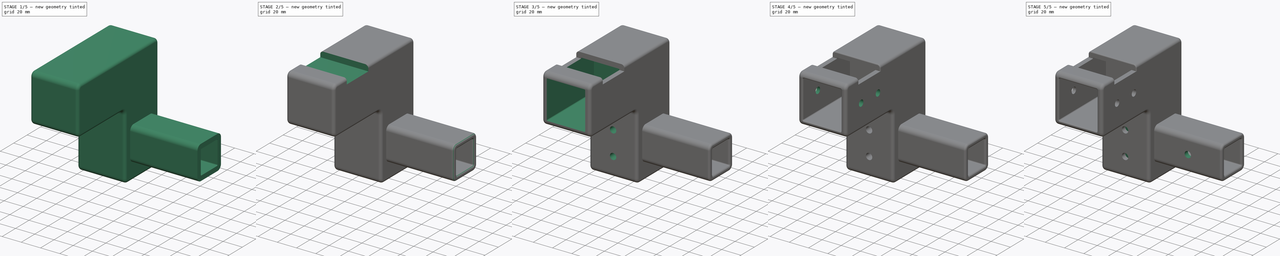
[diagram: build sequence overview — one tinted view per stage of 5, left to right]
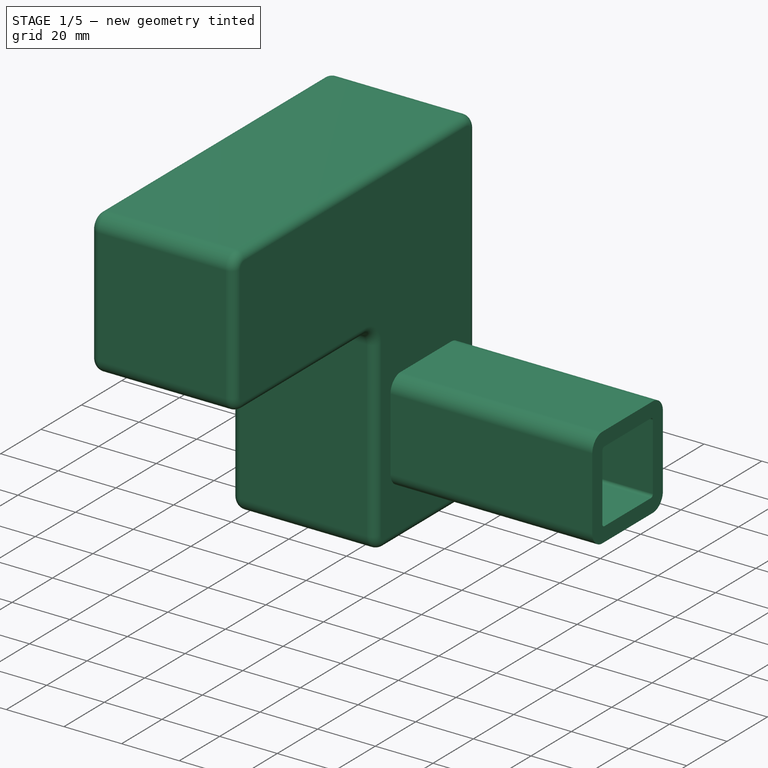
[diagram: stage 1 of 5 — iso view after this stage's code; geometry added in this stage tinted green]
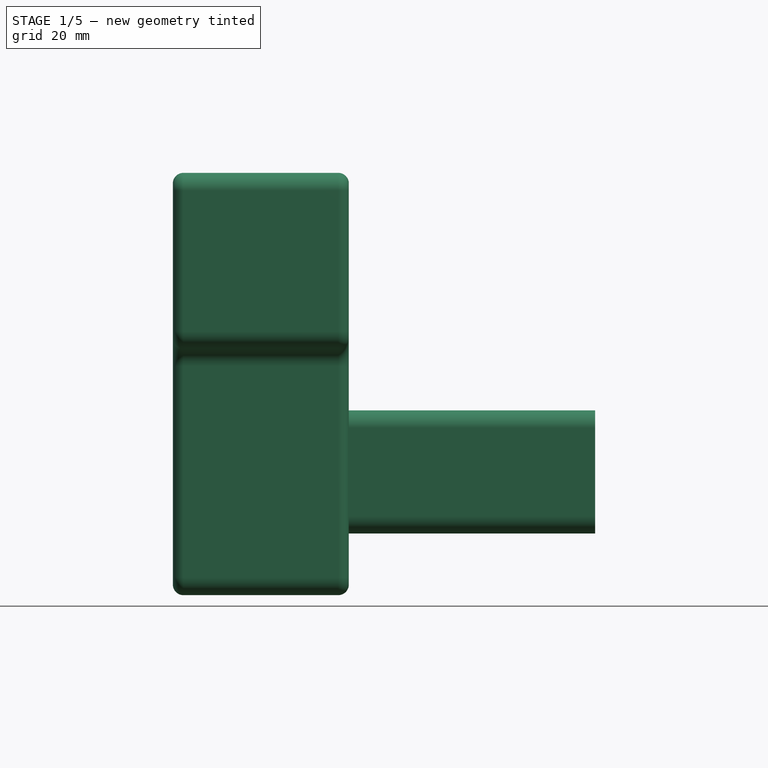
[diagram: stage 1 of 5 — front view after this stage's code; geometry added in this stage tinted green]
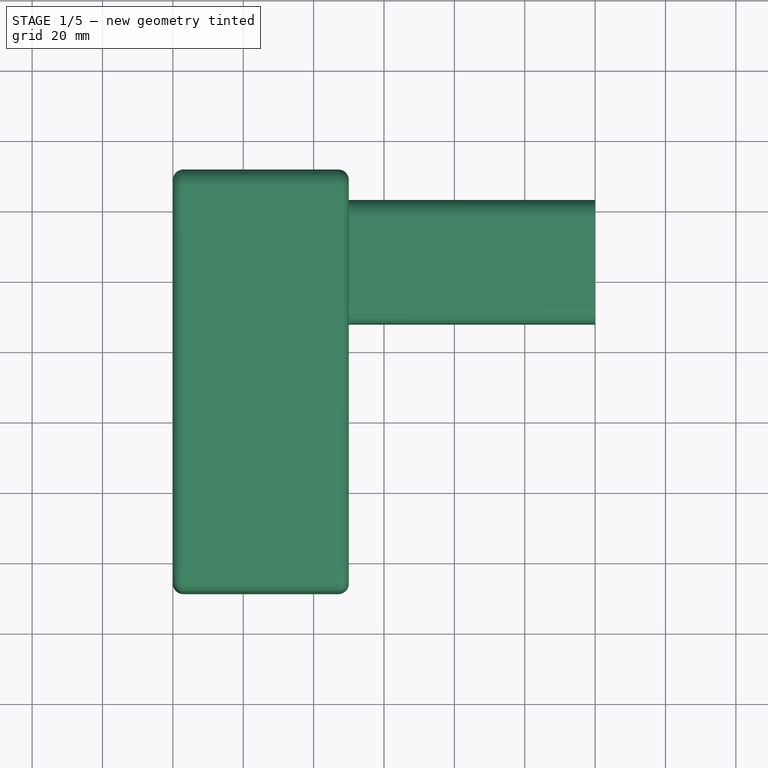
[diagram: stage 1 of 5 — top view after this stage's code; geometry added in this stage tinted green]
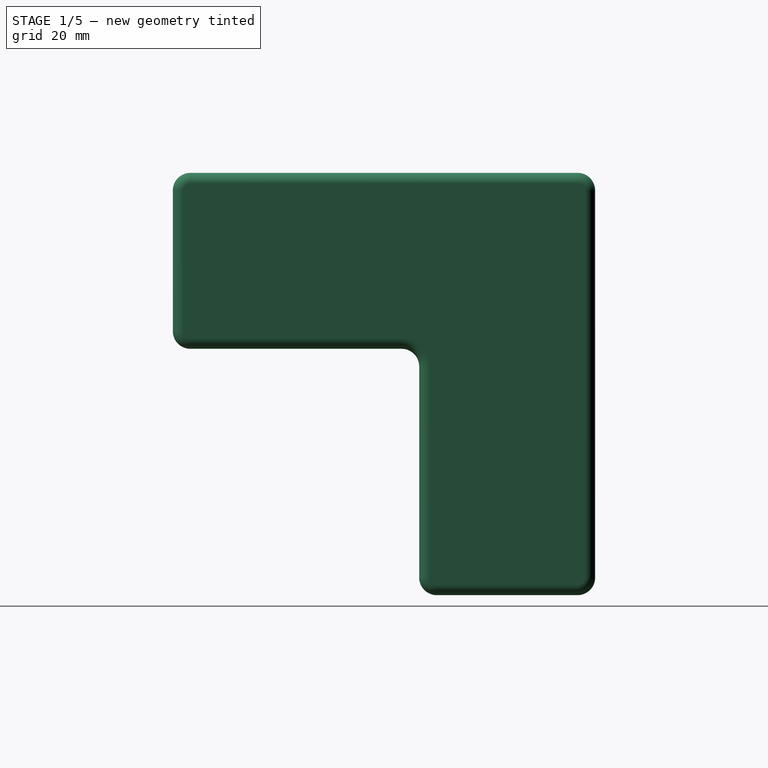
[diagram: stage 1 of 5 — right view after this stage's code; geometry added in this stage tinted green]
FCSTD DOCUMENT  (FreeCAD 0.21R33771 (Git))
Label: solow-cube-back-top-corner-left
License: All rights reserved
LicenseURL: http://en.wikipedia.org/wiki/All_rights_reserved
objects: Sketcher::SketchObject×9, PartDesign::Fillet×9, PartDesign::Hole×4, PartDesign::Pocket×3, PartDesign::Pad×2, PartDesign::Body×1
note: 46 computed .brp shape members not serialized (recipe doc carries the construction recipe); baked Part::Feature solids carry a one-line shape summary decoded from their .brp

FEATURE [Sketcher::SketchObject] Sketch
  FullyConstrained = true
  MapMode = 5
  Placement = pos=(0,0,0) rot=(0.57735,0.57735,0.57735;2.0944rad)
  Support = -> [YZ_Plane]
  sketch-geometry (18):
    g0: LineSegment StartX=-5 StartY=-1.234e-13 StartZ=0 EndX=-65 EndY=0 EndZ=0
    g1: LineSegment StartX=-70 StartY=5 StartZ=0 EndX=-70 EndY=45 EndZ=0
    g2: LineSegment StartX=-65 StartY=50 StartZ=0 EndX=45 EndY=50 EndZ=0
    g3: LineSegment StartX=50 StartY=45 StartZ=0 EndX=50 EndY=-65 EndZ=0
    g4: LineSegment StartX=45 StartY=-70 StartZ=0 EndX=5 EndY=-70 EndZ=0
    g5: LineSegment StartX=0 StartY=-65 StartZ=0 EndX=-1.234e-13 EndY=-5 EndZ=0
    g6: ArcOfCircle CenterX=-65 CenterY=45 CenterZ=0 NormalX=0 NormalY=0 NormalZ=1 AngleXU=0 Radius=5 StartAngle=1.5708 EndAngle=3.14159
    g7: GeomPoint X=-70 Y=50 Z=0
    g8: ArcOfCircle CenterX=-65 CenterY=5 CenterZ=0 NormalX=0 NormalY=0 NormalZ=1 AngleXU=0 Radius=5 StartAngle=3.14159 EndAngle=4.71239
    g9: GeomPoint X=-70 Y=0 Z=0
    g10: ArcOfCircle CenterX=5 CenterY=-65 CenterZ=0 NormalX=0 NormalY=0 NormalZ=1 AngleXU=0 Radius=5 StartAngle=3.14159 EndAngle=4.71239
    g11: GeomPoint X=0 Y=-70 Z=0
    g12: ArcOfCircle CenterX=45 CenterY=-65 CenterZ=0 NormalX=0 NormalY=0 NormalZ=1 AngleXU=0 Radius=5 StartAngle=4.71239 EndAngle=6.28319
    g13: GeomPoint X=50 Y=-70 Z=0
    g14: ArcOfCircle CenterX=45 CenterY=45 CenterZ=0 NormalX=0 NormalY=0 NormalZ=1 AngleXU=0 Radius=5 StartAngle=-9e-16 EndAngle=1.5708
    g15: GeomPoint X=50 Y=50 Z=0
    g16: ArcOfCircle CenterX=-5 CenterY=-5 CenterZ=0 NormalX=0 NormalY=0 NormalZ=1 AngleXU=0 Radius=5 StartAngle=-3.819e-13 EndAngle=1.5708
    g17: GeomPoint X=0 Y=0 Z=0
  constraints (41):
    c: Coincident(g17,g-1)
    c: PointOnObject(g9,g-1)
    c: Vertical(g1)
    c: Horizontal(g2)
    c: Vertical(g3)
    c: DistanceY(g13,g15) = 120
    c: DistanceY(g9,g7) = 50
    c: DistanceX(g7,g15) = 120
    c: PointOnObject(g11,g-2)
    c: Horizontal(g4)
    c: DistanceX(g11,g13) = 50
    c: PointOnObject(g7,g1)
    c: PointOnObject(g7,g2)
    c: Tangent(g1,g6) = 1.5708
    c: Tangent(g2,g6) = 1.5708
    c: PointOnObject(g9,g1)
    c: PointOnObject(g9,g0)
    c: Tangent(g1,g8) = 1.5708
    c: Tangent(g0,g8) = 1.5708
    c: PointOnObject(g11,g5)
    c: PointOnObject(g11,g4)
    c: Tangent(g5,g10) = 1.5708
    c: Tangent(g4,g10) = 1.5708
    c: PointOnObject(g13,g3)
    c: PointOnObject(g13,g4)
    c: Tangent(g3,g12) = 1.5708
    c: Tangent(g4,g12) = 1.5708
    c: PointOnObject(g15,g3)
    c: PointOnObject(g15,g2)
    c: Tangent(g3,g14) = 1.5708
    c: Tangent(g2,g14) = 1.5708
    c: Radius(g6) = 5
    c: Radius(g8) = 5
    c: Radius(g14) = 5
    c: Radius(g10) = 5
    c: Radius(g12) = 5
    c: PointOnObject(g17,g0)
    c: PointOnObject(g17,g5)
    c: Tangent(g0,g16) = -1.5708
    c: Tangent(g5,g16) = -1.5708
    c: Radius(g16) = 5
FEATURE [PartDesign::Pad] Pad
  Direction = (1,-2e-16,3e-16)
  Length = 50
  Length2 = 10
  Placement = pos=(0,0,0) rot=(0.57735,0.57735,0.57735;2.0944rad)
  Profile = -> Sketch
  ReferenceAxis = -> Sketch [N_Axis]
  Type = 0
FEATURE [PartDesign::Fillet] Fillet
  Base = -> Pad [Edge21]
  BaseFeature = -> Pad
  Placement = pos=(0,0,0) rot=(0.57735,0.57735,0.57735;2.0944rad)
  Radius = 3
  SupportTransform = false
  UseAllEdges = false
FEATURE [PartDesign::Fillet] Fillet001
  Base = -> Fillet [Edge16]
  BaseFeature = -> Fillet
  Placement = pos=(0,0,0) rot=(0.57735,0.57735,0.57735;2.0944rad)
  Radius = 3
  SupportTransform = false
  UseAllEdges = false
FEATURE [Sketcher::SketchObject] Sketch001
  FullyConstrained = true
  MapMode = 5
  Placement = pos=(50,-2.2e-14,1.7e-14) rot=(0.57735,0.57735,0.57735;2.0944rad)
  sketch-geometry (24):
    g0: LineSegment StartX=13.5 StartY=-22.5 StartZ=0 EndX=36.5 EndY=-22.5 EndZ=0
    g1: LineSegment StartX=37.5 StartY=-23.5 StartZ=0 EndX=37.5 EndY=-46.5 EndZ=0
    g2: LineSegment StartX=36.5 StartY=-47.5 StartZ=0 EndX=13.5 EndY=-47.5 EndZ=0
    g3: LineSegment StartX=12.5 StartY=-46.5 StartZ=0 EndX=12.5 EndY=-23.5 EndZ=0
    g4: ArcOfCircle CenterX=13.5 CenterY=-23.5 CenterZ=0 NormalX=0 NormalY=0 NormalZ=1 AngleXU=0 Radius=1 StartAngle=1.5708 EndAngle=3.14159
    g5: GeomPoint X=12.5 Y=-22.5 Z=0
    g6: ArcOfCircle CenterX=36.5 CenterY=-23.5 CenterZ=0 NormalX=0 NormalY=0 NormalZ=1 AngleXU=0 Radius=1 StartAngle=1.1e-15 EndAngle=1.5708
    g7: GeomPoint X=37.5 Y=-22.5 Z=0
    g8: ArcOfCircle CenterX=13.5 CenterY=-46.5 CenterZ=0 NormalX=0 NormalY=0 NormalZ=1 AngleXU=0 Radius=1 StartAngle=3.14159 EndAngle=4.71239
    g9: GeomPoint X=12.5 Y=-47.5 Z=0
    g10: ArcOfCircle CenterX=36.5 CenterY=-46.5 CenterZ=0 NormalX=0 NormalY=0 NormalZ=1 AngleXU=0 Radius=1 StartAngle=4.71239 EndAngle=6.28319
    g11: GeomPoint X=37.5 Y=-47.5 Z=0
    g12: LineSegment StartX=12.5 StartY=-17.5 StartZ=0 EndX=37.5 EndY=-17.5 EndZ=0
    g13: LineSegment StartX=42.5 StartY=-22.5 StartZ=0 EndX=42.5 EndY=-47.5 EndZ=0
    g14: LineSegment StartX=37.5 StartY=-52.5 StartZ=0 EndX=12.5 EndY=-52.5 EndZ=0
    g15: LineSegment StartX=7.5 StartY=-47.5 StartZ=0 EndX=7.5 EndY=-22.5 EndZ=0
    g16: ArcOfCircle CenterX=12.5 CenterY=-22.5 CenterZ=0 NormalX=0 NormalY=0 NormalZ=1 AngleXU=0 Radius=5 StartAngle=1.5708 EndAngle=3.14159
    g17: GeomPoint X=7.5 Y=-17.5 Z=0
    g18: ArcOfCircle CenterX=12.5 CenterY=-47.5 CenterZ=0 NormalX=0 NormalY=0 NormalZ=1 AngleXU=0 Radius=5 StartAngle=3.14159 EndAngle=4.71239
    g19: GeomPoint X=7.5 Y=-52.5 Z=0
    g20: ArcOfCircle CenterX=37.5 CenterY=-47.5 CenterZ=0 NormalX=0 NormalY=0 NormalZ=1 AngleXU=0 Radius=5 StartAngle=4.71239 EndAngle=6.28319
    g21: GeomPoint X=42.5 Y=-52.5 Z=0
    g22: ArcOfCircle CenterX=37.5 CenterY=-22.5 CenterZ=0 NormalX=0 NormalY=0 NormalZ=1 AngleXU=0 Radius=5 StartAngle=0 EndAngle=1.5708
    g23: GeomPoint X=42.5 Y=-17.5 Z=0
  constraints (56):
    c: Horizontal(g0)
    c: Horizontal(g2)
    c: Vertical(g1)
    c: Vertical(g3)
    c: DistanceX(g5) = 12.5
    c: DistanceX(g9,g11) = 25
    c: DistanceY(g5) = -22.5
    c: DistanceY(g9,g5) = 25
    c: PointOnObject(g5,g3)
    c: PointOnObject(g5,g0)
    c: Tangent(g3,g4) = 1.5708
    c: Tangent(g0,g4) = 1.5708
    c: PointOnObject(g7,g0)
    c: PointOnObject(g7,g1)
    c: Tangent(g0,g6) = 1.5708
    c: Tangent(g1,g6) = 1.5708
    c: PointOnObject(g9,g2)
    c: PointOnObject(g9,g3)
    c: Tangent(g2,g8) = 1.5708
    c: Tangent(g3,g8) = 1.5708
    c: PointOnObject(g11,g1)
    c: PointOnObject(g11,g2)
    c: Tangent(g1,g10) = 1.5708
    c: Tangent(g2,g10) = 1.5708
    c: Radius(g4) = 1
    c: Radius(g8) = 1
    c: Radius(g10) = 1
    c: Radius(g6) = 1
    c: Horizontal(g12)
    c: Horizontal(g14)
    c: Vertical(g13)
    c: Vertical(g15)
    c: DistanceX(g17) = 7.5
    c: DistanceY(g17) = -17.5
    c: DistanceY(g21) = -52.5
    c: DistanceX(g21) = 42.5
    c: PointOnObject(g17,g15)
    c: PointOnObject(g17,g12)
    c: Tangent(g15,g16) = 1.5708
    c: Tangent(g12,g16) = 1.5708
    c: PointOnObject(g19,g14)
    c: PointOnObject(g19,g15)
    c: Tangent(g14,g18) = 1.5708
    c: Tangent(g15,g18) = 1.5708
    c: PointOnObject(g21,g14)
    c: PointOnObject(g21,g13)
    c: Tangent(g14,g20) = 1.5708
    c: Tangent(g13,g20) = 1.5708
    c: PointOnObject(g23,g13)
    c: PointOnObject(g23,g12)
    c: Tangent(g13,g22) = 1.5708
    c: Tangent(g12,g22) = 1.5708
    c: Radius(g16) = 5
    c: Radius(g22) = 5
    c: Radius(g18) = 5
    c: Radius(g20) = 5
FEATURE [PartDesign::Pad] Pad001
  BaseFeature = -> Fillet001
  Direction = (1,0,0)
  Length = 70
  Length2 = 10
  Placement = pos=(0,0,0) rot=(0.57735,0.57735,0.57735;2.0944rad)
  Profile = -> Sketch001
  ReferenceAxis = -> Sketch001 [N_Axis]
  Type = 0
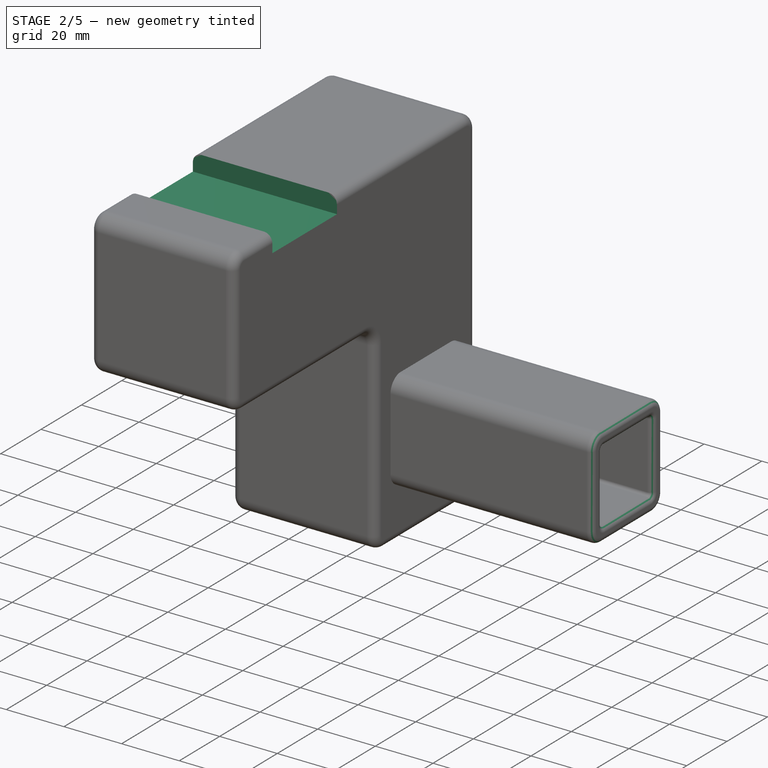
[diagram: stage 2 of 5 — iso view after this stage's code; geometry added in this stage tinted green]
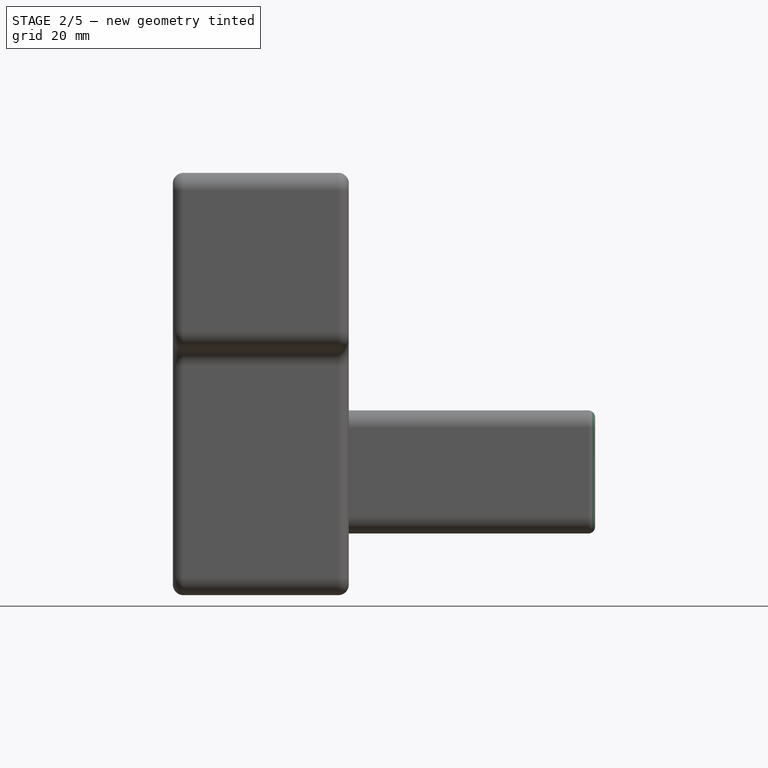
[diagram: stage 2 of 5 — front view after this stage's code; geometry added in this stage tinted green]
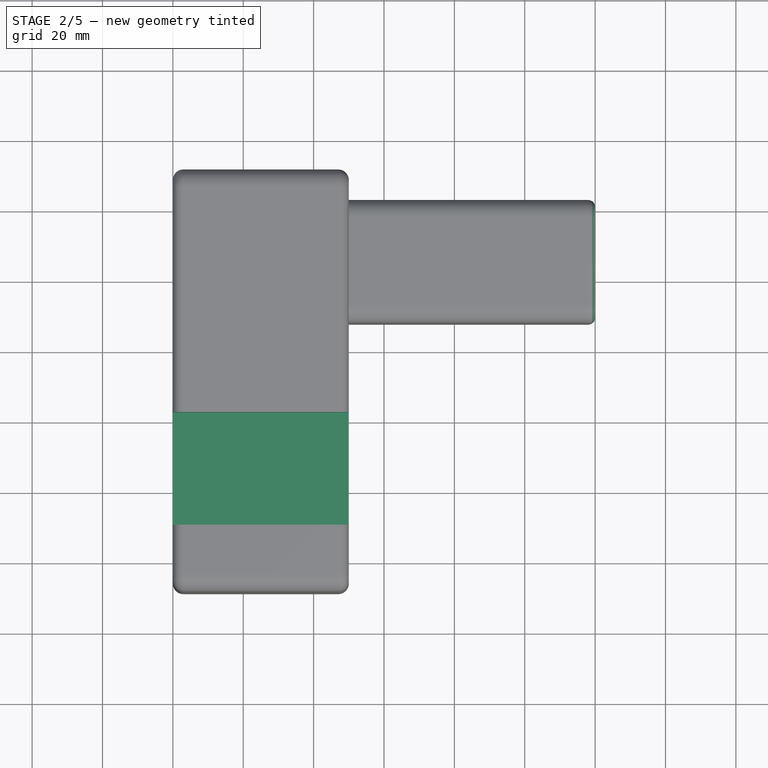
[diagram: stage 2 of 5 — top view after this stage's code; geometry added in this stage tinted green]
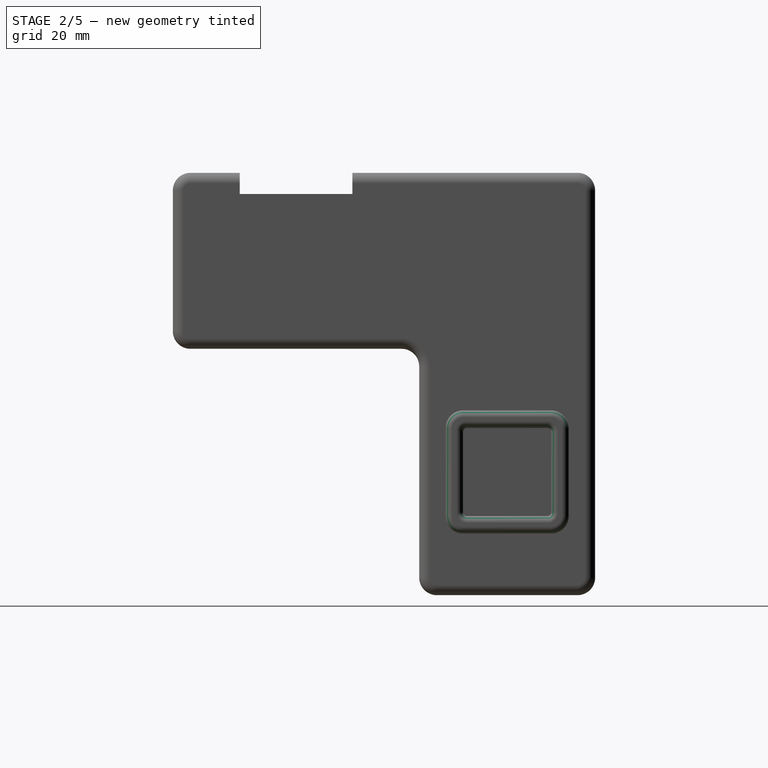
[diagram: stage 2 of 5 — right view after this stage's code; geometry added in this stage tinted green]
FEATURE [PartDesign::Fillet] Fillet002
  Base = -> Pad001 [Edge87]
  BaseFeature = -> Pad001
  Placement = pos=(0,0,0) rot=(0.57735,0.57735,0.57735;2.0944rad)
  Radius = 2
  SupportTransform = false
  UseAllEdges = false
FEATURE [PartDesign::Fillet] Fillet003
  Base = -> Fillet002 [Edge46]
  BaseFeature = -> Fillet002
  Placement = pos=(0,0,0) rot=(0.57735,0.57735,0.57735;2.0944rad)
  Radius = 2
  SupportTransform = false
  UseAllEdges = false
FEATURE [Sketcher::SketchObject] Sketch002
  FullyConstrained = true
  MapMode = 5
  Placement = pos=(0,0,0) rot=(0.57735,0.57735,-0.57735;4.18879rad)
  sketch-geometry (4):
    g0: LineSegment StartX=-19 StartY=-50 StartZ=0 EndX=-51 EndY=-50 EndZ=0
    g1: LineSegment StartX=-51 StartY=-50 StartZ=0 EndX=-51 EndY=-44 EndZ=0
    g2: LineSegment StartX=-51 StartY=-44 StartZ=0 EndX=-19 EndY=-44 EndZ=0
    g3: LineSegment StartX=-19 StartY=-44 StartZ=0 EndX=-19 EndY=-50 EndZ=0
  constraints (12):
    c: Coincident(g0,g1)
    c: Coincident(g1,g2)
    c: Coincident(g2,g3)
    c: Coincident(g3,g0)
    c: Horizontal(g0)
    c: Horizontal(g2)
    c: Vertical(g1)
    c: Vertical(g3)
    c: DistanceY(g2) = -44
    c: DistanceX(g2) = -19
    c: DistanceY(g0) = -50
    c: DistanceX(g0) = -51
FEATURE [PartDesign::Pocket] Pocket
  BaseFeature = -> Fillet003
  Direction = (1,0,0)
  Length = 6
  Length2 = 5
  Placement = pos=(0,0,0) rot=(0.57735,0.57735,0.57735;2.0944rad)
  Profile = -> Sketch002
  ReferenceAxis = -> Sketch002 [N_Axis]
  Type = 1
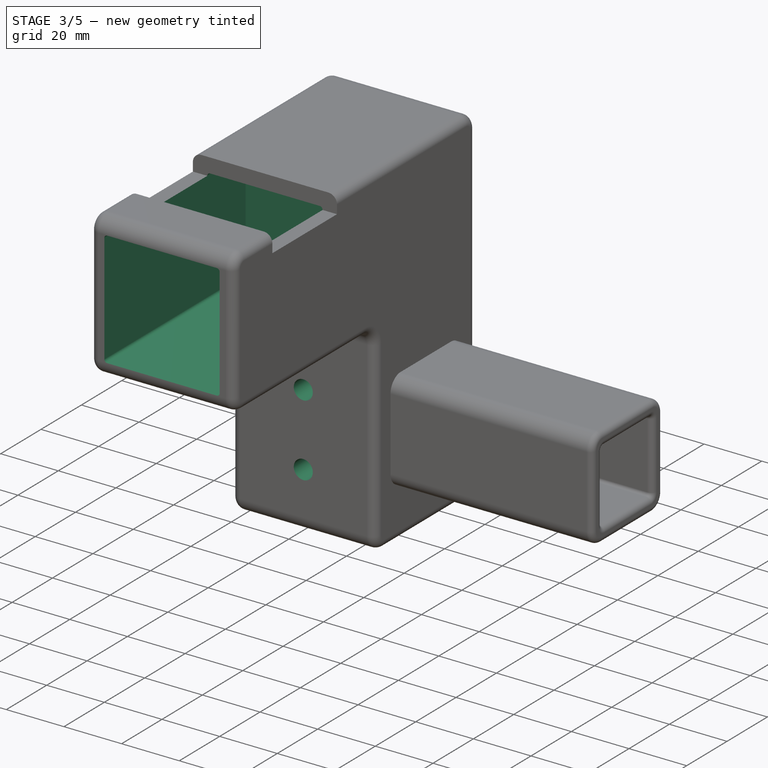
[diagram: stage 3 of 5 — iso view after this stage's code; geometry added in this stage tinted green]
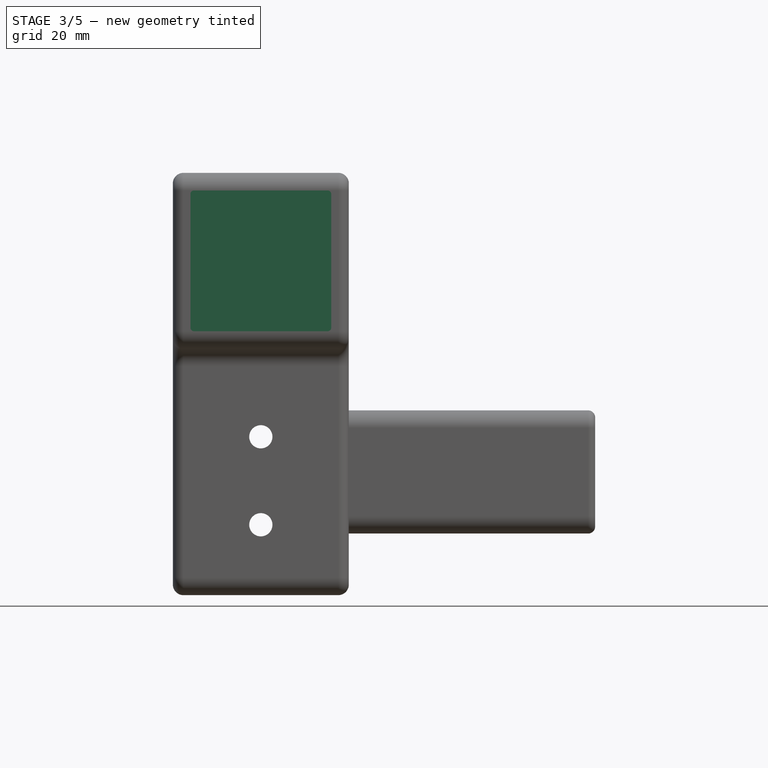
[diagram: stage 3 of 5 — front view after this stage's code; geometry added in this stage tinted green]
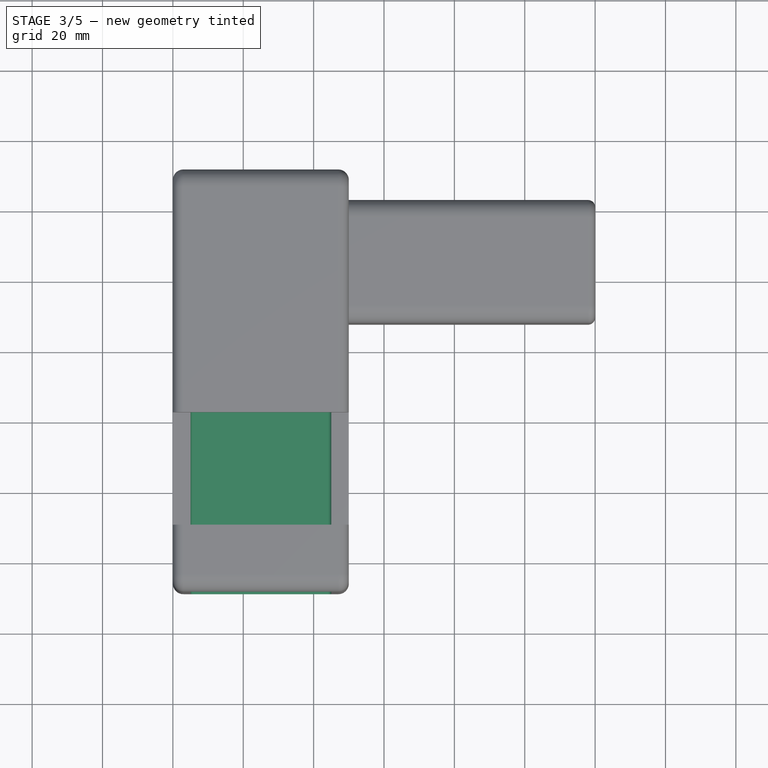
[diagram: stage 3 of 5 — top view after this stage's code; geometry added in this stage tinted green]
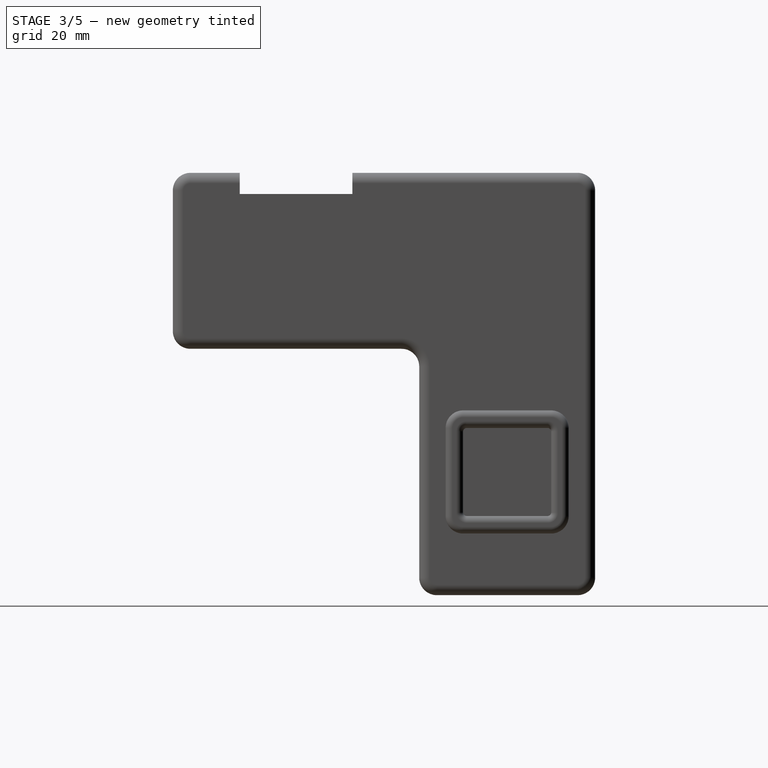
[diagram: stage 3 of 5 — right view after this stage's code; geometry added in this stage tinted green]
FEATURE [Sketcher::SketchObject] Sketch003
  FullyConstrained = true
  MapMode = 5
  Placement = pos=(-4.6e-14,-70,1.5e-14) rot=(0.57735,0.57735,-0.57735;2.0944rad)
  sketch-geometry (12):
    g0: LineSegment StartX=-6 StartY=5 StartZ=0 EndX=-44 EndY=5 EndZ=0
    g1: LineSegment StartX=-45 StartY=6 StartZ=0 EndX=-45 EndY=44 EndZ=0
    g2: LineSegment StartX=-44 StartY=45 StartZ=0 EndX=-6 EndY=45 EndZ=0
    g3: LineSegment StartX=-5 StartY=44 StartZ=0 EndX=-5 EndY=6 EndZ=0
    g4: ArcOfCircle CenterX=-44 CenterY=6 CenterZ=0 NormalX=0 NormalY=0 NormalZ=1 AngleXU=0 Radius=1 StartAngle=3.14159 EndAngle=4.71239
    g5: GeomPoint X=-45 Y=5 Z=0
    g6: ArcOfCircle CenterX=-6 CenterY=6 CenterZ=0 NormalX=0 NormalY=0 NormalZ=1 AngleXU=0 Radius=1 StartAngle=4.71239 EndAngle=6.28319
    g7: GeomPoint X=-5 Y=5 Z=0
    g8: ArcOfCircle CenterX=-6 CenterY=44 CenterZ=0 NormalX=0 NormalY=0 NormalZ=1 AngleXU=0 Radius=1 StartAngle=7.7846e-12 EndAngle=1.5708
    g9: GeomPoint X=-5 Y=45 Z=0
    g10: ArcOfCircle CenterX=-44 CenterY=44 CenterZ=0 NormalX=0 NormalY=0 NormalZ=1 AngleXU=0 Radius=1 StartAngle=1.5708 EndAngle=3.14159
    g11: GeomPoint X=-45 Y=45 Z=0
  constraints (28):
    c: Horizontal(g0)
    c: Horizontal(g2)
    c: Vertical(g1)
    c: Vertical(g3)
    c: DistanceX(g7) = -5
    c: DistanceY(g7) = 5
    c: DistanceX(g11) = -45
    c: DistanceY(g11) = 45
    c: PointOnObject(g5,g0)
    c: PointOnObject(g5,g1)
    c: Tangent(g0,g4) = 1.5708
    c: Tangent(g1,g4) = 1.5708
    c: PointOnObject(g7,g0)
    c: PointOnObject(g7,g3)
    c: Tangent(g0,g6) = 1.5708
    c: Tangent(g3,g6) = 1.5708
    c: PointOnObject(g9,g2)
    c: PointOnObject(g9,g3)
    c: Tangent(g2,g8) = 1.5708
    c: Tangent(g3,g8) = 1.5708
    c: PointOnObject(g11,g2)
    c: PointOnObject(g11,g1)
    c: Tangent(g2,g10) = 1.5708
    c: Tangent(g1,g10) = 1.5708
    c: Radius(g4) = 1
    c: Radius(g10) = 1
    c: Radius(g6) = 1
    c: Radius(g8) = 1
FEATURE [PartDesign::Pocket] Pocket001
  BaseFeature = -> Pocket
  Direction = (1e-15,1,-1e-16)
  Length = 70
  Length2 = 5
  Placement = pos=(0,0,0) rot=(0.57735,0.57735,0.57735;2.0944rad)
  Profile = -> Sketch003
  ReferenceAxis = -> Sketch003 [N_Axis]
  Type = 0
FEATURE [PartDesign::Fillet] Fillet004
  Base = -> Pocket001 [Edge122]
  BaseFeature = -> Pocket001
  Placement = pos=(0,0,0) rot=(0.57735,0.57735,0.57735;2.0944rad)
  Radius = 1
  SupportTransform = false
  UseAllEdges = false
FEATURE [Sketcher::SketchObject] Sketch004
  FullyConstrained = true
  MapMode = 5
  Placement = pos=(3.9e-14,50,-1.1e-14) rot=(0.57735,0.57735,0.57735;4.18879rad)
  sketch-geometry (2):
    g0: Circle CenterX=-25 CenterY=25 CenterZ=0 NormalX=0 NormalY=0 NormalZ=1 AngleXU=0 Radius=3
    g1: Circle CenterX=-50 CenterY=25 CenterZ=0 NormalX=0 NormalY=0 NormalZ=1 AngleXU=0 Radius=3
  constraints (6):
    c: DistanceX(g0) = -25
    c: DistanceX(g1) = -50
    c: DistanceY(g0) = 25
    c: DistanceY(g1) = 25
    c: Diameter(g1) = 6
    c: Diameter(g0) = 6
FEATURE [PartDesign::Fillet] Fillet005
  Base = -> Fillet004 [Edge20]
  BaseFeature = -> Fillet004
  Placement = pos=(0,0,0) rot=(0.57735,0.57735,0.57735;2.0944rad)
  Radius = 2
  SupportTransform = false
  UseAllEdges = false
FEATURE [PartDesign::Hole] Hole
  BaseFeature = -> Fillet005
  CustomThreadClearance = 0
  Depth = 419.849
  DepthType = 1
  Diameter = 6.6
  DrillForDepth = false
  DrillPoint = 1
  DrillPointAngle = 118
  HoleCutCountersinkAngle = 90
  HoleCutCustomValues = false
  HoleCutDepth = 1.8
  HoleCutDiameter = 11
  HoleCutType = 1
  ModelThread = false
  Placement = pos=(0,0,0) rot=(0.57735,0.57735,0.57735;2.0944rad)
  Profile = -> Sketch004
  Tapered = false
  TaperedAngle = 90
  ThreadClass = 0
  ThreadDepth = 419.849
  ThreadDepthType = 0
  ThreadDirection = 0
  ThreadFit = 0
  ThreadSize = 14
  ThreadType = 1
  Threaded = false
  UseCustomThreadClearance = false
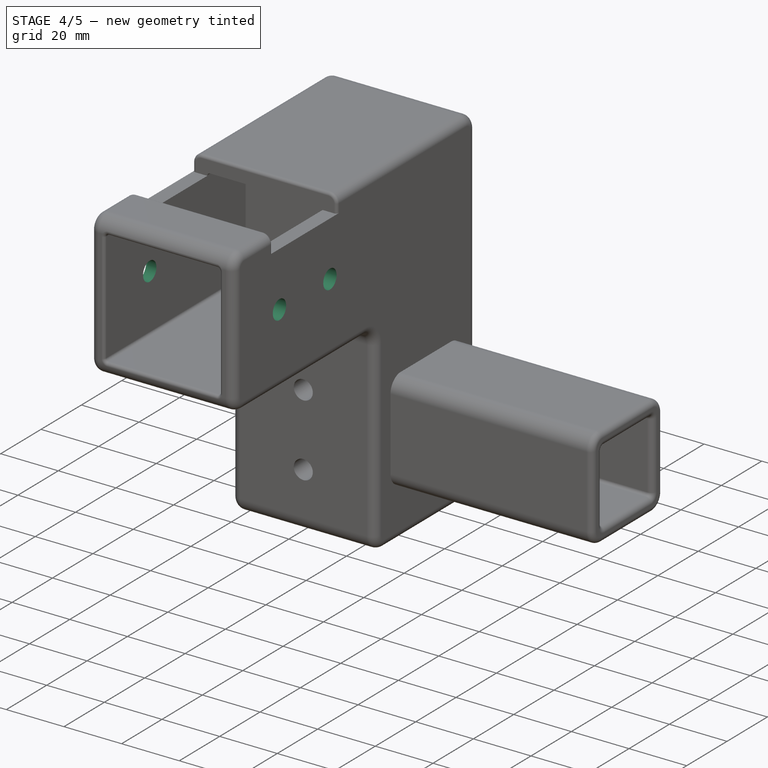
[diagram: stage 4 of 5 — iso view after this stage's code; geometry added in this stage tinted green]
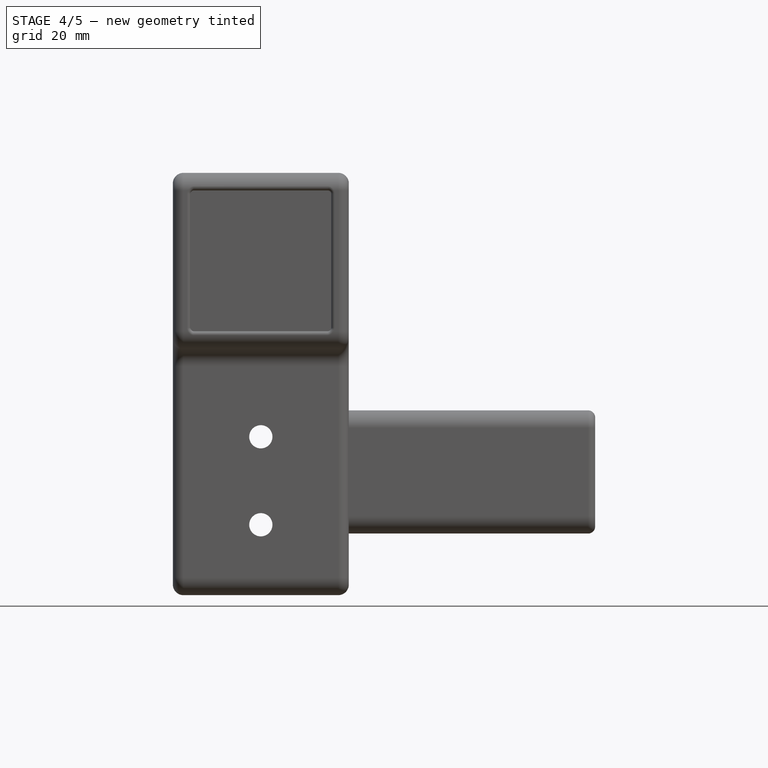
[diagram: stage 4 of 5 — front view after this stage's code; geometry added in this stage tinted green]
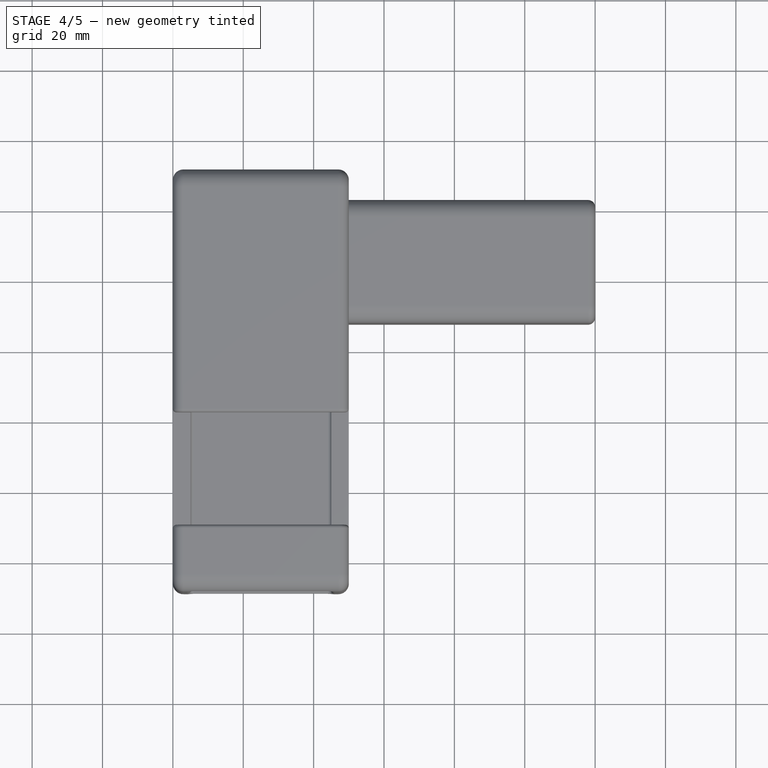
[diagram: stage 4 of 5 — top view after this stage's code; geometry added in this stage tinted green]
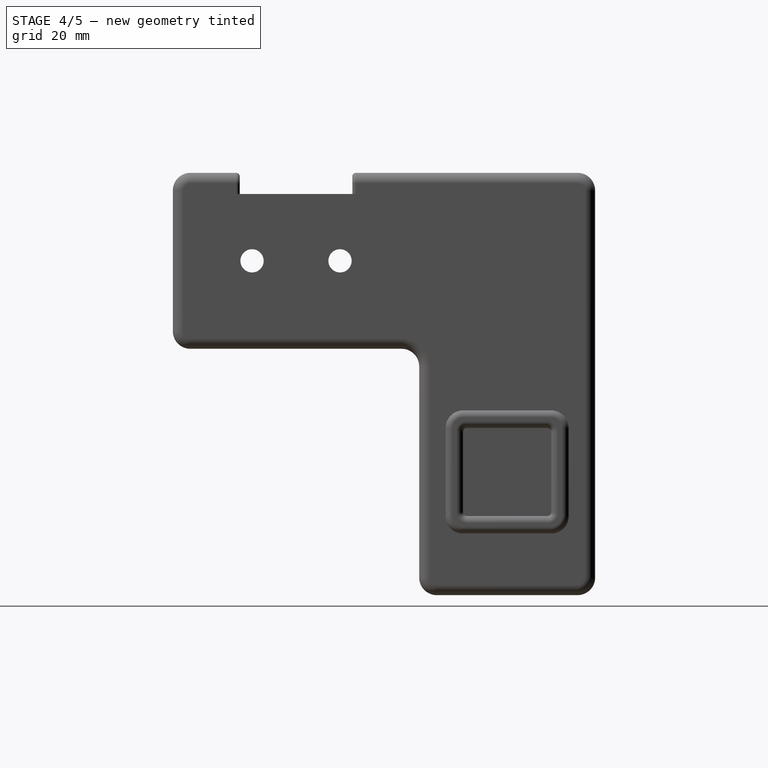
[diagram: stage 4 of 5 — right view after this stage's code; geometry added in this stage tinted green]
FEATURE [PartDesign::Fillet] Fillet006
  Base = -> Hole [Edge112,Edge106]
  BaseFeature = -> Hole
  Placement = pos=(0,0,0) rot=(0.57735,0.57735,0.57735;2.0944rad)
  Radius = 1
  SupportTransform = false
  UseAllEdges = false
FEATURE [Sketcher::SketchObject] Sketch005
  FullyConstrained = true
  MapMode = 5
  Placement = pos=(0,0,0) rot=(0.57735,0.57735,-0.57735;4.18879rad)
  sketch-geometry (2):
    g0: Circle CenterX=-22.5 CenterY=-25 CenterZ=0 NormalX=0 NormalY=0 NormalZ=1 AngleXU=0 Radius=3
    g1: Circle CenterX=-47.5 CenterY=-25 CenterZ=0 NormalX=0 NormalY=0 NormalZ=1 AngleXU=0 Radius=3
  constraints (6):
    c: DistanceY(g0) = -25
    c: DistanceY(g1) = -25
    c: DistanceX(g1) = -47.5
    c: DistanceX(g0) = -22.5
    c: Diameter(g1) = 6
    c: Diameter(g0) = 6
FEATURE [PartDesign::Hole] Hole001
  BaseFeature = -> Fillet006
  CustomThreadClearance = 0
  Depth = 419.849
  DepthType = 1
  Diameter = 6.6
  DrillForDepth = false
  DrillPoint = 1
  DrillPointAngle = 118
  HoleCutCountersinkAngle = 90
  HoleCutCustomValues = false
  HoleCutDepth = 1.8
  HoleCutDiameter = 11
  HoleCutType = 1
  ModelThread = false
  Placement = pos=(0,0,0) rot=(0.57735,0.57735,0.57735;2.0944rad)
  Profile = -> Sketch005
  Tapered = false
  TaperedAngle = 90
  ThreadClass = 0
  ThreadDepth = 419.849
  ThreadDepthType = 0
  ThreadDirection = 0
  ThreadFit = 0
  ThreadSize = 14
  ThreadType = 1
  Threaded = false
  UseCustomThreadClearance = false
FEATURE [PartDesign::Fillet] Fillet007
  Base = -> Hole001 [Edge110]
  BaseFeature = -> Hole001
  Placement = pos=(0,0,0) rot=(0.57735,0.57735,0.57735;2.0944rad)
  Radius = 1
  SupportTransform = false
  UseAllEdges = false
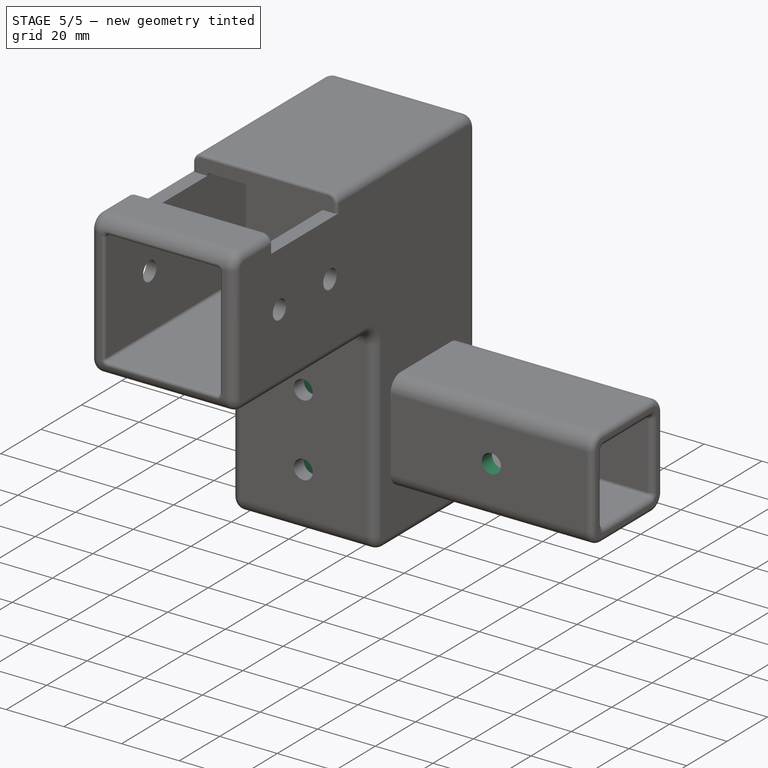
[diagram: stage 5 of 5 — iso view after this stage's code; geometry added in this stage tinted green]
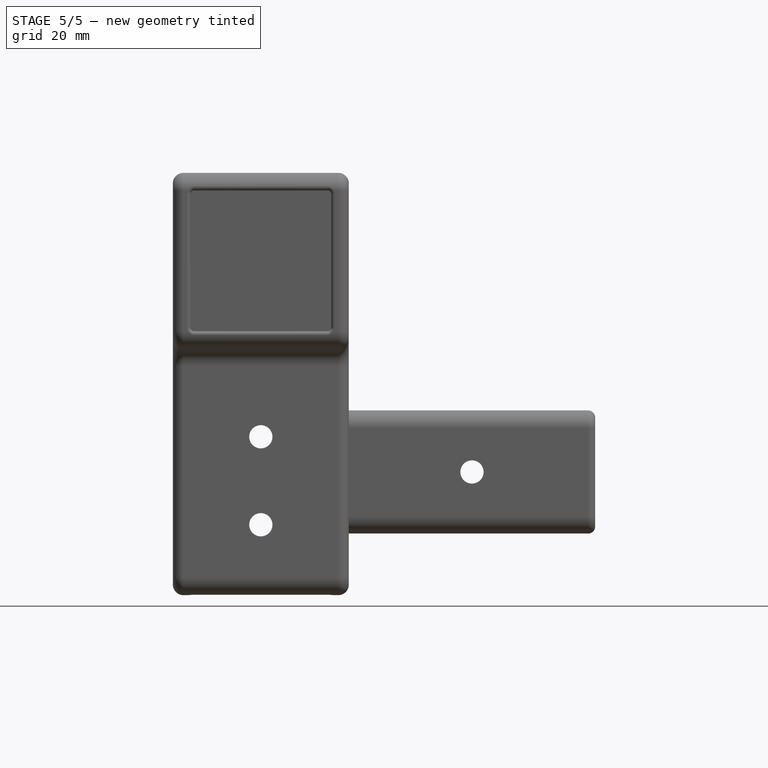
[diagram: stage 5 of 5 — front view after this stage's code; geometry added in this stage tinted green]
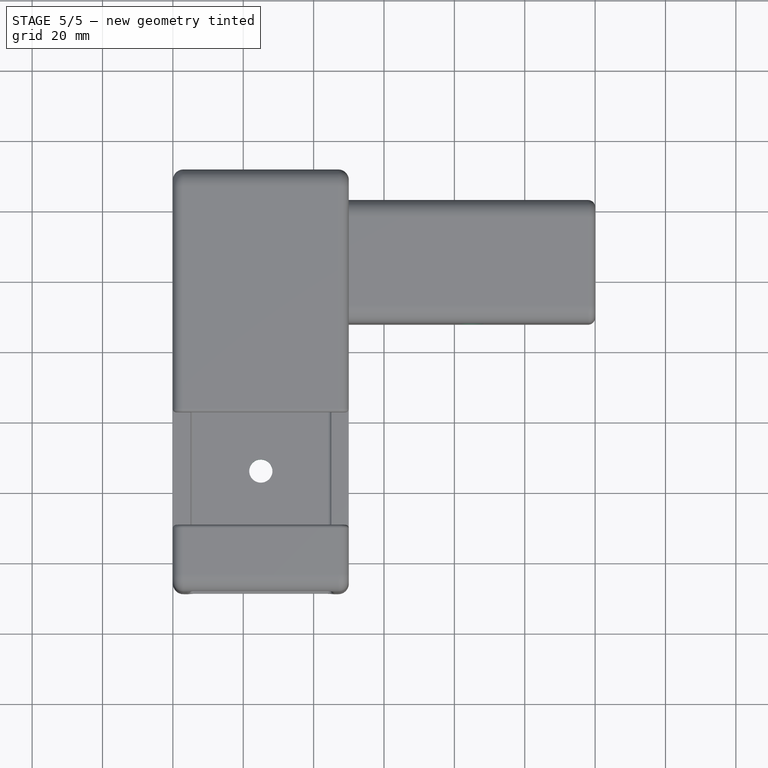
[diagram: stage 5 of 5 — top view after this stage's code; geometry added in this stage tinted green]
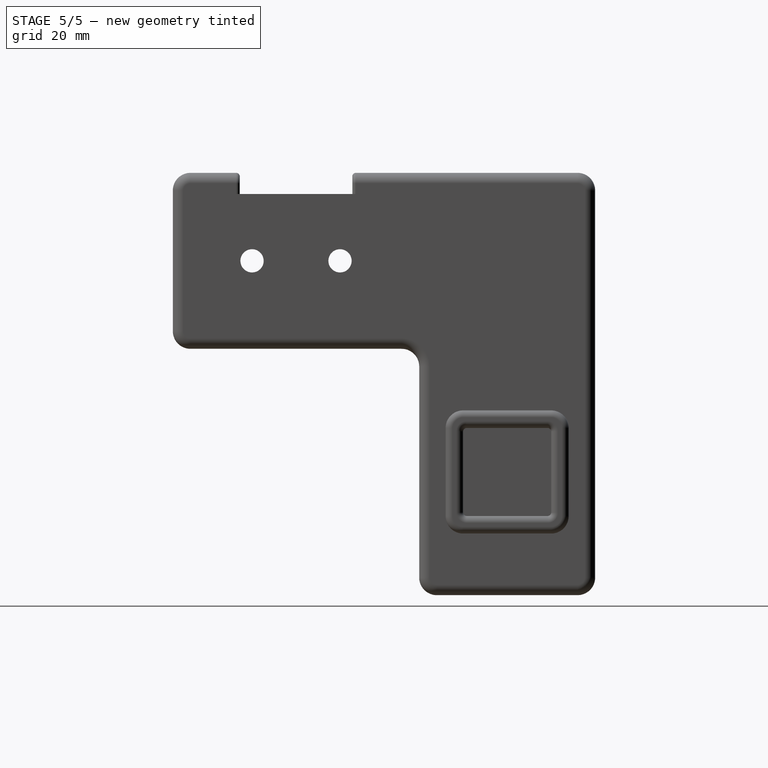
[diagram: stage 5 of 5 — right view after this stage's code; geometry added in this stage tinted green]
FEATURE [Sketcher::SketchObject] Sketch006
  FullyConstrained = true
  MapMode = 5
  Placement = pos=(2e-14,-7e-14,-70) rot=(0.707107,0.707107,0;3.14159rad)
  sketch-geometry (12):
    g0: LineSegment StartX=6 StartY=5 StartZ=0 EndX=44 EndY=5 EndZ=0
    g1: LineSegment StartX=45 StartY=6 StartZ=0 EndX=45 EndY=44 EndZ=0
    g2: LineSegment StartX=44 StartY=45 StartZ=0 EndX=6 EndY=45 EndZ=0
    g3: LineSegment StartX=5 StartY=44 StartZ=0 EndX=5 EndY=6 EndZ=0
    g4: ArcOfCircle CenterX=6 CenterY=44 CenterZ=0 NormalX=0 NormalY=0 NormalZ=1 AngleXU=0 Radius=1 StartAngle=1.5708 EndAngle=3.14159
    g5: GeomPoint X=5 Y=45 Z=0
    g6: ArcOfCircle CenterX=44 CenterY=44 CenterZ=0 NormalX=0 NormalY=0 NormalZ=1 AngleXU=0 Radius=1 StartAngle=2.1e-15 EndAngle=1.5708
    g7: GeomPoint X=45 Y=45 Z=0
    g8: ArcOfCircle CenterX=6 CenterY=6 CenterZ=0 NormalX=0 NormalY=0 NormalZ=1 AngleXU=0 Radius=1 StartAngle=3.14159 EndAngle=4.71239
    g9: GeomPoint X=5 Y=5 Z=0
    g10: ArcOfCircle CenterX=44 CenterY=6 CenterZ=0 NormalX=0 NormalY=0 NormalZ=1 AngleXU=0 Radius=1 StartAngle=4.71239 EndAngle=6.28319
    g11: GeomPoint X=45 Y=5 Z=0
  constraints (28):
    c: Horizontal(g0)
    c: Horizontal(g2)
    c: Vertical(g1)
    c: Vertical(g3)
    c: DistanceX(g7) = 45
    c: DistanceY(g7) = 45
    c: DistanceY(g9) = 5
    c: DistanceX(g9) = 5
    c: PointOnObject(g5,g3)
    c: PointOnObject(g5,g2)
    c: Tangent(g3,g4) = -1.5708
    c: Tangent(g2,g4) = -1.5708
    c: PointOnObject(g7,g1)
    c: PointOnObject(g7,g2)
    c: Tangent(g1,g6) = -1.5708
    c: Tangent(g2,g6) = -1.5708
    c: PointOnObject(g9,g0)
    c: PointOnObject(g9,g3)
    c: Tangent(g0,g8) = -1.5708
    c: Tangent(g3,g8) = -1.5708
    c: PointOnObject(g11,g0)
    c: PointOnObject(g11,g1)
    c: Tangent(g0,g10) = -1.5708
    c: Tangent(g1,g10) = -1.5708
    c: Radius(g6) = 1
    c: Radius(g10) = 1
    c: Radius(g8) = 1
    c: Radius(g4) = 1
FEATURE [PartDesign::Pocket] Pocket002
  BaseFeature = -> Fillet007
  Direction = (0,1e-15,1)
  Length = 70
  Length2 = 5
  Placement = pos=(0,0,0) rot=(0.57735,0.57735,0.57735;2.0944rad)
  Profile = -> Sketch006
  ReferenceAxis = -> Sketch006 [N_Axis]
  Type = 0
FEATURE [PartDesign::Fillet] Fillet008
  Base = -> Pocket002 [Edge243]
  BaseFeature = -> Pocket002
  Placement = pos=(0,0,0) rot=(0.57735,0.57735,0.57735;2.0944rad)
  Radius = 1
  SupportTransform = false
  UseAllEdges = false
FEATURE [Sketcher::SketchObject] Sketch007
  FullyConstrained = true
  MapMode = 5
  Placement = pos=(2.4e-14,42.5,-5e-15) rot=(0.57735,0.57735,0.57735;4.18879rad)
  sketch-geometry (1):
    g0: Circle CenterX=-35 CenterY=85 CenterZ=0 NormalX=0 NormalY=0 NormalZ=1 AngleXU=0 Radius=3
  constraints (3):
    c: DistanceX(g0) = -35
    c: DistanceY(g0) = 85
    c: Diameter(g0) = 6
FEATURE [PartDesign::Hole] Hole002
  BaseFeature = -> Fillet008
  CustomThreadClearance = 0
  Depth = 419.849
  DepthType = 1
  Diameter = 6.6
  DrillForDepth = false
  DrillPoint = 1
  DrillPointAngle = 118
  HoleCutCountersinkAngle = 90
  HoleCutCustomValues = false
  HoleCutDepth = 1.8
  HoleCutDiameter = 11
  HoleCutType = 1
  ModelThread = false
  Placement = pos=(0,0,0) rot=(0.57735,0.57735,0.57735;2.0944rad)
  Profile = -> Sketch007
  Tapered = false
  TaperedAngle = 90
  ThreadClass = 0
  ThreadDepth = 419.849
  ThreadDepthType = 0
  ThreadDirection = 0
  ThreadFit = 0
  ThreadSize = 14
  ThreadType = 1
  Threaded = false
  UseCustomThreadClearance = false
FEATURE [Sketcher::SketchObject] Sketch008
  FullyConstrained = true
  MapMode = 5
  Placement = pos=(0,0,-1.37e-13) rot=(0.707107,0.707107,0;3.14159rad)
  sketch-geometry (1):
    g0: Circle CenterX=-35 CenterY=25 CenterZ=0 NormalX=0 NormalY=0 NormalZ=1 AngleXU=0 Radius=3
  constraints (3):
    c: DistanceY(g0) = 25
    c: DistanceX(g0) = -35
    c: Diameter(g0) = 6
FEATURE [PartDesign::Hole] Hole003
  BaseFeature = -> Hole002
  CustomThreadClearance = 0
  Depth = 25
  DepthType = 0
  Diameter = 6.6
  DrillForDepth = false
  DrillPoint = 1
  DrillPointAngle = 118
  HoleCutCountersinkAngle = 90
  HoleCutCustomValues = false
  HoleCutDepth = 1.8
  HoleCutDiameter = 11
  HoleCutType = 1
  ModelThread = false
  Placement = pos=(0,0,0) rot=(0.57735,0.57735,0.57735;2.0944rad)
  Profile = -> Sketch008
  Tapered = false
  TaperedAngle = 90
  ThreadClass = 0
  ThreadDepth = 25
  ThreadDepthType = 0
  ThreadDirection = 0
  ThreadFit = 0
  ThreadSize = 14
  ThreadType = 1
  Threaded = false
  UseCustomThreadClearance = false
FEATURE [PartDesign::Body] Body
  Group = -> [Sketch,Pad,Fillet,Fillet001,Sketch001,Pad001,Fillet002,Fillet003,Sketch002,Pocket,Sketch003,Pocket001,Fillet004,Sketch004,Fillet005,Hole,Fillet006,Sketch005,Hole001,Fillet007,Sketch006,Pocket002,Fillet008,Sketch007,Hole002,Sketch008,Hole003]
  Origin = -> Origin
  Tip = -> Hole003
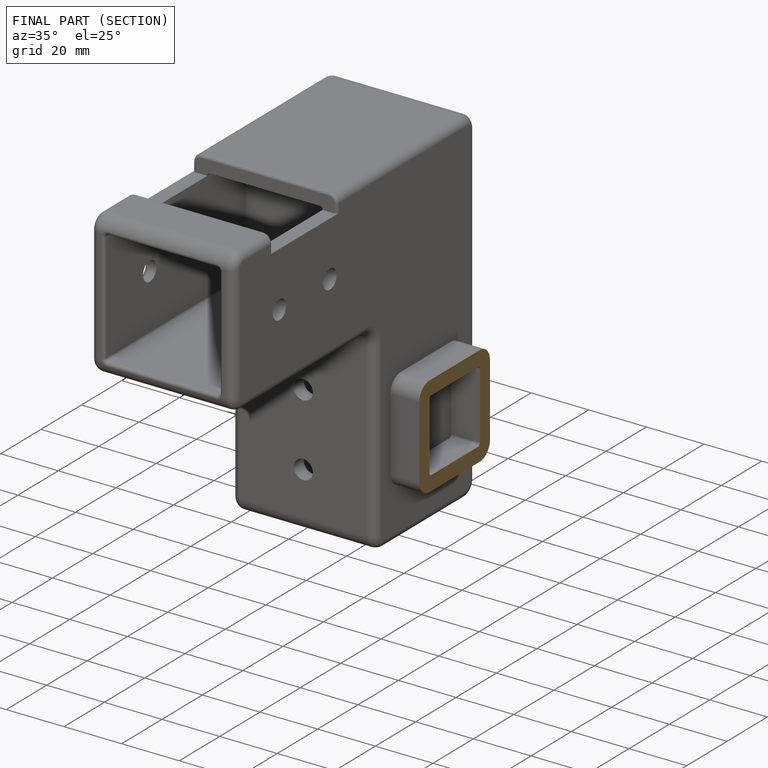
[diagram: finished part — half-section view (interior)]
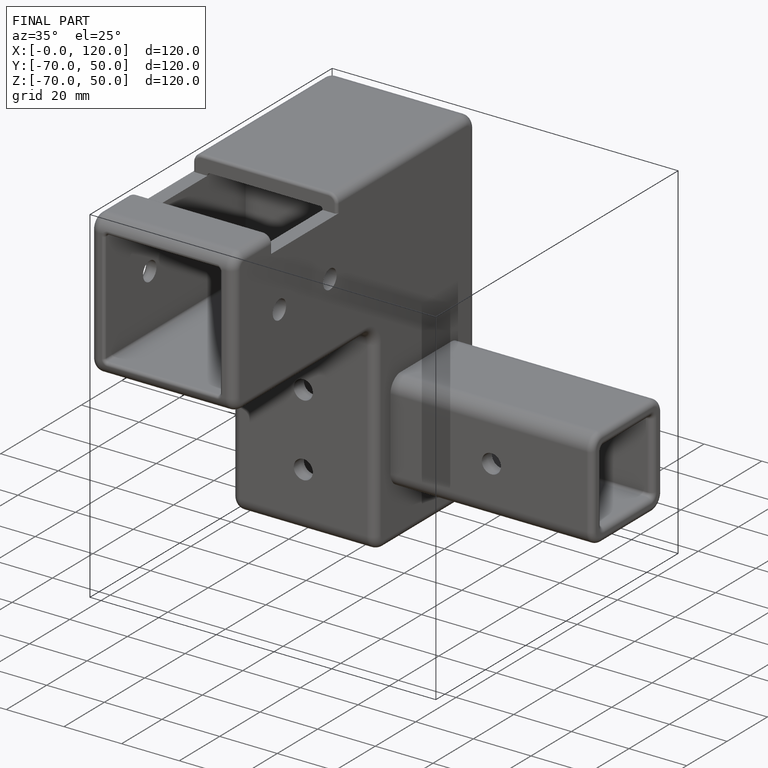
[diagram: finished part — iso view with bounding-box wireframe]
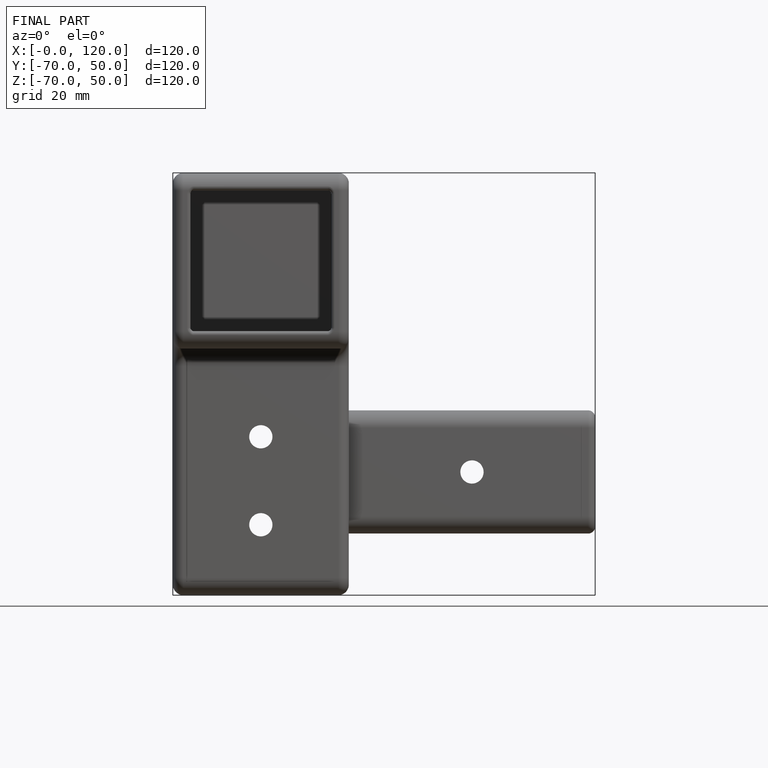
[diagram: finished part — front view with bounding-box wireframe]
